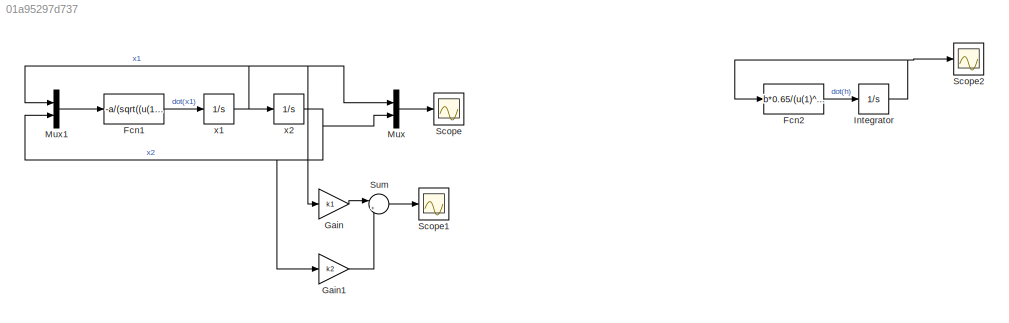
MODEL slx_01a95297d737
KIND model
CONFIG AbsTol = auto
CONFIG EnableMultiTasking = off
CONFIG FixedStep = auto
CONFIG MaxStep = 0.01
CONFIG MinStep = auto
CONFIG RelTol = 1e-3
CONFIG SampleTimeConstraint = Unconstrained
CONFIG SolverName = VariableStepAuto
CONFIG StartTime = 0.0
CONFIG StopTime = 2000
BLOCK [Fcn] Fcn1
  Expr = -a/(sqrt((u(1)+hbar)^3)) + b*d/((u(1)+hbar)^2)+b*(k1*u(1)+k2*u(2))/((u(1)+hbar)^2)
  NameLocation = top
BLOCK [Fcn] Fcn2
  Expr = b*0.65/(u(1)^2)-a*sqrt(u(1))/(u(1)^2)
  NameLocation = top
BLOCK [Gain] Gain
  Gain = k1
BLOCK [Gain] Gain1
  Gain = k2
BLOCK [Integrator] Integrator
  InitialCondition = 6
  Ports = [1, 1]
BLOCK [Mux] Mux
  DisplayOption = bar
  Inputs = 2
  Ports = [2, 1]
BLOCK [Mux] Mux1
  DisplayOption = bar
  Inputs = 2
  Ports = [2, 1]
BLOCK [Scope] Scope
  Floating = off
  NumInputPorts = 1
  Ports = [1]
  ScopeSpecificationString = Simulink.scopes.TimeScopeBlockCfg('CurrentConfiguration', extmgr.ConfigurationSet(extmgr.Configuration('Core','General UI',true,'FigureColor',[1 1 1]),extmgr.Configuration('Core','Source UI',true),extmgr.Configuration('Sources','WiredSimulink',true,'DataLogging',true,'DataLoggingVariableName','data','DataLoggingSaveFormat','Array'),extmgr.Configuration('Visuals','Time Domain',true,'SerializedDispl...<+1829ch>
BLOCK [Scope] Scope1
  Floating = off
  NumInputPorts = 1
  Ports = [1]
  ScopeSpecificationString = Simulink.scopes.TimeScopeBlockCfg('CurrentConfiguration', extmgr.ConfigurationSet(extmgr.Configuration('Core','General UI',true),extmgr.Configuration('Core','Source UI',true),extmgr.Configuration('Sources','WiredSimulink',true,'DataLoggingVariableName','datau','DataLogging',true,'DataLoggingSaveFormat','Array'),extmgr.Configuration('Visuals','Time Domain',true,'SerializedDisplays',{struct('MinYLim...<+1452ch>
BLOCK [Scope] Scope2
  Floating = off
  NumInputPorts = 1
  Ports = [1]
  ScopeSpecificationString = Simulink.scopes.TimeScopeBlockCfg('CurrentConfiguration', extmgr.ConfigurationSet(extmgr.Configuration('Core','General UI',true),extmgr.Configuration('Core','Source UI',true),extmgr.Configuration('Sources','WiredSimulink',true),extmgr.Configuration('Visuals','Time Domain',true,'SerializedDisplays',{struct('MinYLimReal','5.86038','MaxYLimReal','7.25659','YLabelReal','','MinYLimMag','5.86038','MaxYL...<+1372ch>
BLOCK [Sum] Sum
  Inputs = |++
  Ports = [2, 1]
BLOCK [Integrator] x1
  InitialCondition = x1ini
  Ports = [1, 1]
BLOCK [Integrator] x2
  InitialCondition = x2ini
  Ports = [1, 1]
LINE Fcn1:1 -> x1:1
LINE Fcn2:1 -> Integrator:1
LINE Gain1:1 -> Sum:2
LINE Gain:1 -> Sum:1
NET Integrator:1 -> Fcn2:1, Scope2:1
LINE Mux1:1 -> Fcn1:1
LINE Mux:1 -> Scope:1
LINE Sum:1 -> Scope1:1
NET x1:1 -> Gain:1, Mux1:1, Mux:1, x2:1
NET x2:1 -> Gain1:1, Mux1:2, Mux:2
note: NET lines group one-source signal fan-out (src -> all destinations, sorted); 1:1 wires keep LINE
